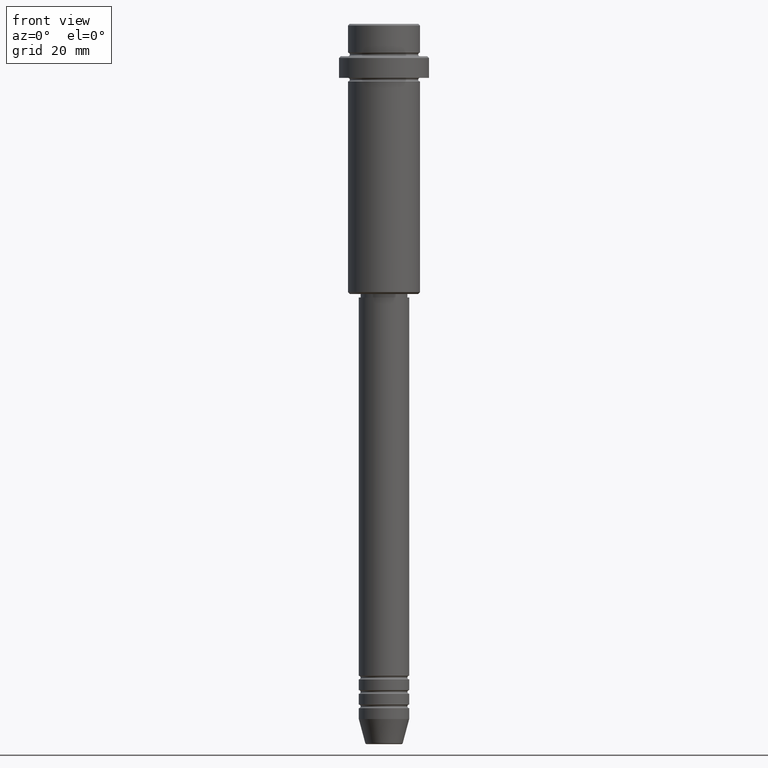
[diagram: clean part render]
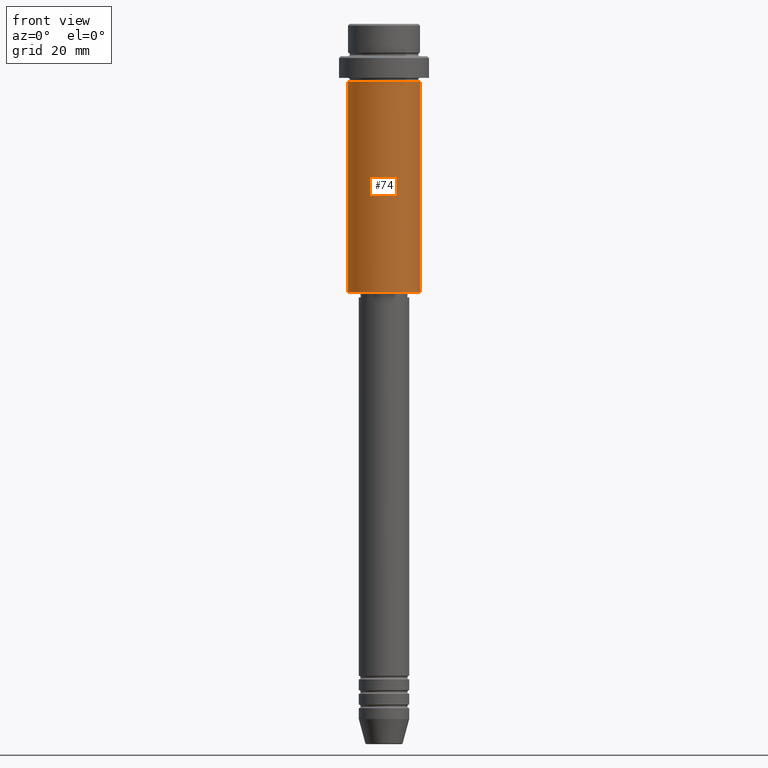
[diagram: same view with one face highlighted and labeled with its STEP entity id]
A machine part, front view. The second image highlights one B-rep face of the part: STEP entity #74.
In plain terms, the highlighted cylindrical surface (edge-blend (fillet) strip) has radius 10 mm, axis along (-0, -0, 1).
Its self-contained STEP definition (entity closure, byte-faithful):
#28 = EDGE_CURVE ( 'NONE', #907, #953, #924, .T. ) ;
#32 = CARTESIAN_POINT ( 'NONE',  ( 0.000000000000000000, 0.000000000000000000, -74.50000000000001421 ) ) ;
#41 = DIRECTION ( 'NONE',  ( 1.000000000000000000, 0.000000000000000000, 0.000000000000000000 ) ) ;
#52 = DIRECTION ( 'NONE',  ( -0.000000000000000000, -0.000000000000000000, 1.000000000000000000 ) ) ;
#74 = ADVANCED_FACE ( 'NONE', ( #144 ), #1321, .T. ) ;
#144 = FACE_OUTER_BOUND ( 'NONE', #276, .T. ) ;
#167 = DIRECTION ( 'NONE',  ( -0.000000000000000000, -0.000000000000000000, 1.000000000000000000 ) ) ;
#249 = DIRECTION ( 'NONE',  ( -0.000000000000000000, -0.000000000000000000, 1.000000000000000000 ) ) ;
#276 = EDGE_LOOP ( 'NONE', ( #787, #422, #637, #916 ) ) ;
#285 = VERTEX_POINT ( 'NONE', #973 ) ;
#299 = VECTOR ( 'NONE', #52, 1000.000000000000000 ) ;
#364 = CARTESIAN_POINT ( 'NONE',  ( -9.999999999999998224, 1.224646799147353059E-15, -74.50000000000001421 ) ) ;
#395 = AXIS2_PLACEMENT_3D ( 'NONE', #824, #249, #41 ) ;
#422 = ORIENTED_EDGE ( 'NONE', *, *, #28, .T. ) ;
#509 = VECTOR ( 'NONE', #537, 1000.000000000000000 ) ;
#523 = CARTESIAN_POINT ( 'NONE',  ( -9.999999999999998224, 1.224646799147353059E-15, -16.00000000000000000 ) ) ;
#537 = DIRECTION ( 'NONE',  ( -0.000000000000000000, -0.000000000000000000, 1.000000000000000000 ) ) ;
#612 = AXIS2_PLACEMENT_3D ( 'NONE', #32, #1347, #700 ) ;
#637 = ORIENTED_EDGE ( 'NONE', *, *, #1212, .T. ) ;
#700 = DIRECTION ( 'NONE',  ( -1.000000000000000000, 0.000000000000000000, 0.000000000000000000 ) ) ;
#723 = CARTESIAN_POINT ( 'NONE',  ( -9.999999999999998224, 1.224646799147353059E-15, 0.000000000000000000 ) ) ;
#787 = ORIENTED_EDGE ( 'NONE', *, *, #1390, .F. ) ;
#824 = CARTESIAN_POINT ( 'NONE',  ( 0.000000000000000000, 0.000000000000000000, 0.000000000000000000 ) ) ;
#833 = DIRECTION ( 'NONE',  ( 1.000000000000000000, 0.000000000000000000, 0.000000000000000000 ) ) ;
#884 = LINE ( 'NONE', #1308, #509 ) ;
#907 = VERTEX_POINT ( 'NONE', #364 ) ;
#916 = ORIENTED_EDGE ( 'NONE', *, *, #1343, .F. ) ;
#924 = CIRCLE ( 'NONE', #612, 9.999999999999998224 ) ;
#953 = VERTEX_POINT ( 'NONE', #1235 ) ;
#973 = CARTESIAN_POINT ( 'NONE',  ( 9.999999999999998224, 0.000000000000000000, -16.00000000000000000 ) ) ;
#1048 = VERTEX_POINT ( 'NONE', #523 ) ;
#1111 = CIRCLE ( 'NONE', #1287, 9.999999999999998224 ) ;
#1134 = LINE ( 'NONE', #723, #299 ) ;
#1212 = EDGE_CURVE ( 'NONE', #953, #285, #884, .T. ) ;
#1235 = CARTESIAN_POINT ( 'NONE',  ( 9.999999999999998224, 0.000000000000000000, -74.50000000000001421 ) ) ;
#1254 = CARTESIAN_POINT ( 'NONE',  ( 0.000000000000000000, 0.000000000000000000, -16.00000000000000000 ) ) ;
#1287 = AXIS2_PLACEMENT_3D ( 'NONE', #1254, #167, #833 ) ;
#1308 = CARTESIAN_POINT ( 'NONE',  ( 9.999999999999998224, 0.000000000000000000, 0.000000000000000000 ) ) ;
#1321 = CYLINDRICAL_SURFACE ( 'NONE', #395, 9.999999999999998224 ) ;
#1343 = EDGE_CURVE ( 'NONE', #1048, #285, #1111, .T. ) ;
#1347 = DIRECTION ( 'NONE',  ( -0.000000000000000000, -0.000000000000000000, 1.000000000000000000 ) ) ;
#1390 = EDGE_CURVE ( 'NONE', #907, #1048, #1134, .T. ) ;